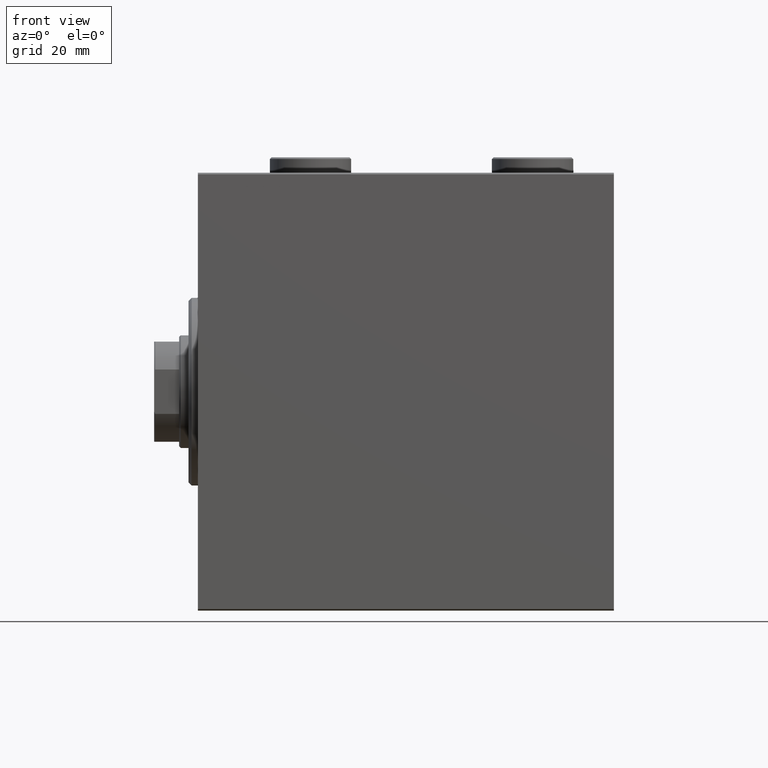
[diagram: clean part render]
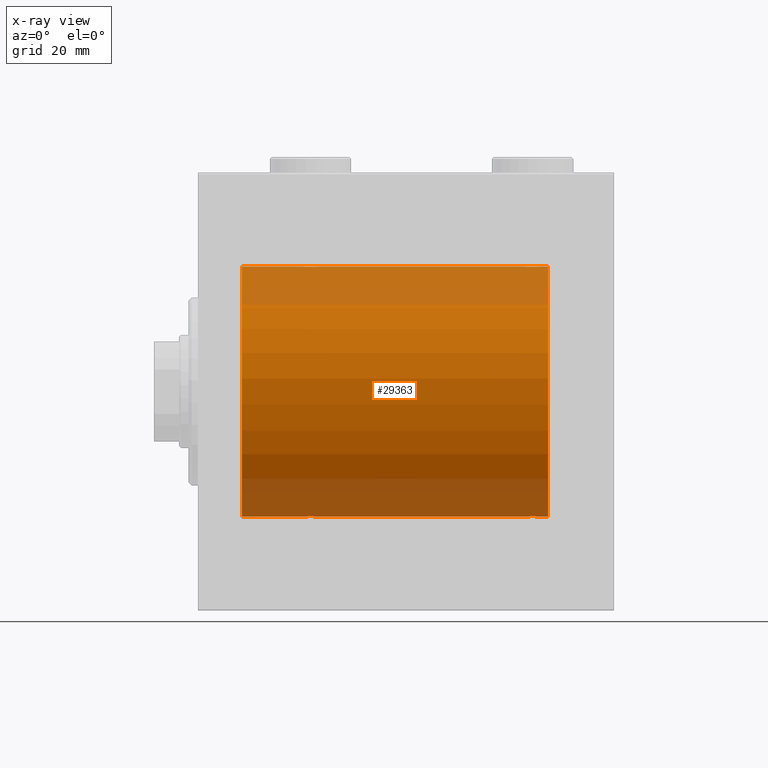
[diagram: x-ray — body ghosted, one internal face saturated and labeled with its STEP entity id]
A machine part, front view, then the same camera in x-ray: the body is ghosted and one INTERNAL B-rep face — a face not visible from any outside direction — is saturated and labeled: STEP entity #29363.
In plain terms, the highlighted cylindrical surface (partial cylindrical patch) has radius 40 mm, axis along (-1, -0, -0).
Its self-contained STEP definition (entity closure, byte-faithful):
#713 = VECTOR ( 'NONE', #26882, 1000.000000000000000 ) ;
#784 = CARTESIAN_POINT ( 'NONE',  ( 109.2582967032050192, -1.984537326394317569, 39.95097977400578060 ) ) ;
#1048 = CARTESIAN_POINT ( 'NONE',  ( 36.96489325853514174, -2.847401743820462183, 39.89859630624607689 ) ) ;
#1174 = B_SPLINE_CURVE_WITH_KNOTS ( 'NONE', 3,
 ( #42198, #28132, #45216, #10550, #35293, #7084, #6408, #34608, #3617, #2944, #17027, #13557, #41750, #10104, #6631, #11694, #15373, #39642, #43567, #11917, #1048, #29490, #32715, #33175, #11227, #36637, #21875, #21643, #22330, #36406, #39190, #43336 ),
 .UNSPECIFIED., .F., .F.,
 ( 4, 2, 2, 2, 2, 2, 2, 2, 2, 2, 2, 2, 2, 2, 2, 4 ),
 ( 0.009382660366305081018, 0.009968941372944116822, 0.01055522237958315263, 0.01114150338622219016, 0.01172778439286122597, 0.01231406539950026177, 0.01290034640613929931, 0.01348662741277833511, 0.01407290841941737092, 0.01465918942605640846, 0.01524547043269544253, 0.01583175143933448006, 0.01641803244597351413, 0.01700431345261255167, 0.01759059445925158921, 0.01876315647252966082 ),
 .UNSPECIFIED. ) ;
#1229 = DIRECTION ( 'NONE',  ( -1.000000000000000000, -0.000000000000000000, -0.000000000000000000 ) ) ;
#1297 = CARTESIAN_POINT ( 'NONE',  ( 109.6972134058088670, -1.327859336864152029, -39.97836169682016561 ) ) ;
#2141 = LINE ( 'NONE', #43738, #713 ) ;
#2628 = CARTESIAN_POINT ( 'NONE',  ( 38.69721340580881730, -1.327859336864144035, -39.97836169682019403 ) ) ;
#2926 = CARTESIAN_POINT ( 'NONE',  ( 32.99999999999999289, 4.605585004310627937E-15, -40.00000000000000000 ) ) ;
#2944 = CARTESIAN_POINT ( 'NONE',  ( 34.01538552187719233, -2.258217541132905293, 39.93644519243653690 ) ) ;
#3114 = LINE ( 'NONE', #28305, #3691 ) ;
#3347 = CARTESIAN_POINT ( 'NONE',  ( 104.1533472698686182, -0.9668189122103458821, 39.98872185468384544 ) ) ;
#3617 = CARTESIAN_POINT ( 'NONE',  ( 33.73902383005257377, -1.981471132463168638, 39.95113231465138881 ) ) ;
#3691 = VECTOR ( 'NONE', #10278, 1000.000000000000000 ) ;
#3907 = CARTESIAN_POINT ( 'NONE',  ( 13.99999999999999822, 4.898587196589413026E-15, -40.00000000000000000 ) ) ;
#4256 = CARTESIAN_POINT ( 'NONE',  ( 105.0153855218772065, -2.258217541132916395, 39.93644519243652979 ) ) ;
#4842 = LINE ( 'NONE', #39733, #34400 ) ;
#4993 = CARTESIAN_POINT ( 'NONE',  ( 105.4991153159596564, -2.604941918888321606, -39.91523680494982784 ) ) ;
#5218 = CARTESIAN_POINT ( 'NONE',  ( 107.7786952341574249, -2.903766417398243149, -39.89448096967571189 ) ) ;
#6257 = ORIENTED_EDGE ( 'NONE', *, *, #9260, .T. ) ;
#6408 = CARTESIAN_POINT ( 'NONE',  ( 33.39566400087915810, -1.502129635934004170, 39.97212271185186694 ) ) ;
#6536 = VECTOR ( 'NONE', #35838, 1000.000000000000000 ) ;
#6561 = AXIS2_PLACEMENT_3D ( 'NONE', #25563, #7997, #29487 ) ;
#6568 = CARTESIAN_POINT ( 'NONE',  ( 112.0000000000000000, 0.000000000000000000, 0.000000000000000000 ) ) ;
#6631 = CARTESIAN_POINT ( 'NONE',  ( 35.22130476584258219, -2.903766417398241373, 39.89448096967571189 ) ) ;
#6897 = AXIS2_PLACEMENT_3D ( 'NONE', #30178, #33865, #16287 ) ;
#6929 = CIRCLE ( 'NONE', #6897, 40.00000000000000000 ) ;
#7039 = CARTESIAN_POINT ( 'NONE',  ( 110.0000000000000142, -2.794909241144302331E-15, 40.00000000000000000 ) ) ;
#7084 = CARTESIAN_POINT ( 'NONE',  ( 33.30278659419118270, -1.327859336864149586, 39.97836169682017982 ) ) ;
#7263 = CARTESIAN_POINT ( 'NONE',  ( 104.6149239908464921, -1.830402106103529380, 39.95843610133493229 ) ) ;
#7449 = CARTESIAN_POINT ( 'NONE',  ( 33.07973825008353685, -0.7903958539027382546, -39.99381900068937767 ) ) ;
#7637 = CARTESIAN_POINT ( 'NONE',  ( 112.0000000000000000, 4.898587196589413026E-15, -40.00000000000000000 ) ) ;
#7718 = CARTESIAN_POINT ( 'NONE',  ( 104.7390238300526022, -1.981471132463181295, 39.95113231465138881 ) ) ;
#7997 = DIRECTION ( 'NONE',  ( -1.000000000000000000, 0.000000000000000000, 0.000000000000000000 ) ) ;
#8124 = CARTESIAN_POINT ( 'NONE',  ( 39.00000000000000000, 4.898587181755365697E-15, -40.00000000000000000 ) ) ;
#8467 = CARTESIAN_POINT ( 'NONE',  ( 106.0351067414648867, -2.847401743820467512, -39.89859630624608400 ) ) ;
#8530 = CARTESIAN_POINT ( 'NONE',  ( 13.99999999999999822, 0.000000000000000000, 40.00000000000000000 ) ) ;
#8828 = ORIENTED_EDGE ( 'NONE', *, *, #15786, .T. ) ;
#8912 = CARTESIAN_POINT ( 'NONE',  ( 110.0000000000000142, 4.898587181754971267E-15, -40.00000000000000000 ) ) ;
#9260 = EDGE_CURVE ( 'NONE', #44555, #44282, #43640, .T. ) ;
#9330 = CARTESIAN_POINT ( 'NONE',  ( 36.39522483453576029, -2.980272303779541332, -39.88883864243169342 ) ) ;
#9406 = ORIENTED_EDGE ( 'NONE', *, *, #25175, .F. ) ;
#9514 = EDGE_CURVE ( 'NONE', #38156, #33543, #27127, .T. ) ;
#9790 = CARTESIAN_POINT ( 'NONE',  ( 37.98461447812278635, -2.258217541132897743, -39.93644519243654400 ) ) ;
#10104 = CARTESIAN_POINT ( 'NONE',  ( 35.03061658105535514, -2.845855236045346626, 39.89870693240651889 ) ) ;
#10249 = CARTESIAN_POINT ( 'NONE',  ( 37.50443082913466242, -2.602909538701748016, -39.91537030566259148 ) ) ;
#10278 = DIRECTION ( 'NONE',  ( -1.000000000000000000, -0.000000000000000000, -0.000000000000000000 ) ) ;
#10332 = CARTESIAN_POINT ( 'NONE',  ( 104.0000000000000142, -4.251671907122233418E-15, -40.00000000000000000 ) ) ;
#10511 = CARTESIAN_POINT ( 'NONE',  ( 107.9648932585351417, -2.847401743820471065, 39.89859630624608400 ) ) ;
#10550 = CARTESIAN_POINT ( 'NONE',  ( 33.09574826348647036, -0.7773146824711031355, 39.99291453282343412 ) ) ;
#10967 = CARTESIAN_POINT ( 'NONE',  ( 109.6018872812849310, -1.506322235190793668, 39.97196309111975410 ) ) ;
#11164 = EDGE_LOOP ( 'NONE', ( #19012, #39549, #6257, #24225, #8828, #26353, #12311, #31114, #30481, #9406, #11865, #20107 ) ) ;
#11187 = CARTESIAN_POINT ( 'NONE',  ( 105.1695517717759998, -2.384933850258125876, 39.92898715513240404 ) ) ;
#11227 = CARTESIAN_POINT ( 'NONE',  ( 37.98136279514229585, -2.261082456166712440, 39.93628274425758207 ) ) ;
#11379 = CARTESIAN_POINT ( 'NONE',  ( 35.22544321173658943, -2.904869018727217700, -39.89440043036668726 ) ) ;
#11694 = CARTESIAN_POINT ( 'NONE',  ( 35.60477516546423260, -2.980272303779554655, 39.88883864243167920 ) ) ;
#11711 = CARTESIAN_POINT ( 'NONE',  ( 106.8043946892691736, -3.000157693440646867, -39.88732948994960736 ) ) ;
#11865 = ORIENTED_EDGE ( 'NONE', *, *, #9514, .T. ) ;
#11917 = CARTESIAN_POINT ( 'NONE',  ( 36.77455678826341057, -2.904869018727228358, 39.89440043036668015 ) ) ;
#12224 = VECTOR ( 'NONE', #22298, 1000.000000000000000 ) ;
#12311 = ORIENTED_EDGE ( 'NONE', *, *, #17837, .T. ) ;
#12393 = CARTESIAN_POINT ( 'NONE',  ( 107.3952248345357816, -2.980272303779556431, -39.88883864243169342 ) ) ;
#12734 = VERTEX_POINT ( 'NONE', #3907 ) ;
#12798 = CARTESIAN_POINT ( 'NONE',  ( 36.96938341894465907, -2.845855236045336856, -39.89870693240651178 ) ) ;
#13557 = CARTESIAN_POINT ( 'NONE',  ( 34.49556917086532337, -2.602909538701755565, 39.91537030566259148 ) ) ;
#13705 = CARTESIAN_POINT ( 'NONE',  ( 37.83044822822401443, -2.384933850258100119, -39.92898715513241115 ) ) ;
#13716 = VERTEX_POINT ( 'NONE', #8530 ) ;
#14614 = CARTESIAN_POINT ( 'NONE',  ( 34.49911531595966352, -2.604941918888306507, -39.91523680494982784 ) ) ;
#14656 = CARTESIAN_POINT ( 'NONE',  ( 104.0000000000000142, -1.483492375313373751E-23, 40.00000000000000000 ) ) ;
#14844 = CARTESIAN_POINT ( 'NONE',  ( 34.67146355253704826, -2.696981015661917613, -39.90904630908468675 ) ) ;
#14878 = CARTESIAN_POINT ( 'NONE',  ( 109.6953700770843767, -1.331594428131652963, 39.97823692017208685 ) ) ;
#15162 = CARTESIAN_POINT ( 'NONE',  ( 110.0000000000000000, -0.1957844162750523587, -40.00000000000000711 ) ) ;
#15373 = CARTESIAN_POINT ( 'NONE',  ( 35.79958713980801832, -2.999840380514748883, 39.88735335562824247 ) ) ;
#15786 = EDGE_CURVE ( 'NONE', #39588, #23220, #26733, .T. ) ;
#15844 = CARTESIAN_POINT ( 'NONE',  ( 106.6089030749067064, -2.980812880639904794, -39.88879797994688658 ) ) ;
#16071 = CARTESIAN_POINT ( 'NONE',  ( 107.9693834189446733, -2.845855236045348402, -39.89870693240651889 ) ) ;
#16287 = DIRECTION ( 'NONE',  ( 0.000000000000000000, 0.000000000000000000, 1.000000000000000000 ) ) ;
#16478 = CARTESIAN_POINT ( 'NONE',  ( 35.80439468926913804, -3.000157693440631324, -39.88732948994960026 ) ) ;
#16982 = EDGE_CURVE ( 'NONE', #44282, #39588, #39292, .T. ) ;
#17027 = CARTESIAN_POINT ( 'NONE',  ( 34.16955177177597847, -2.384933850258108556, 39.92898715513240404 ) ) ;
#17178 = DIRECTION ( 'NONE',  ( 0.000000000000000000, 0.000000000000000000, 1.000000000000000000 ) ) ;
#17425 = CARTESIAN_POINT ( 'NONE',  ( 104.0000000000000142, -1.483492375313373751E-23, 40.00000000000000000 ) ) ;
#17837 = EDGE_CURVE ( 'NONE', #12734, #13716, #35347, .T. ) ;
#17853 = CARTESIAN_POINT ( 'NONE',  ( 35.03510674146484405, -2.847401743820449305, -39.89859630624607689 ) ) ;
#17889 = CARTESIAN_POINT ( 'NONE',  ( 106.2213047658425893, -2.903766417398247590, 39.89448096967571189 ) ) ;
#18353 = CARTESIAN_POINT ( 'NONE',  ( 108.3285364474629660, -2.696981015661940262, 39.90904630908467254 ) ) ;
#18484 = DIRECTION ( 'NONE',  ( -1.000000000000000000, -0.000000000000000000, -0.000000000000000000 ) ) ;
#18790 = LINE ( 'NONE', #32891, #37858 ) ;
#19012 = ORIENTED_EDGE ( 'NONE', *, *, #36321, .F. ) ;
#19551 = CARTESIAN_POINT ( 'NONE',  ( 104.0000000000000284, -0.3964922677423729502, -40.00000000000000000 ) ) ;
#20107 = ORIENTED_EDGE ( 'NONE', *, *, #30285, .F. ) ;
#20313 = VERTEX_POINT ( 'NONE', #35868 ) ;
#20878 = CARTESIAN_POINT ( 'NONE',  ( 39.00000000000000000, 4.898587181755365697E-15, -40.00000000000000000 ) ) ;
#20920 = CARTESIAN_POINT ( 'NONE',  ( 104.3956640008791794, -1.502129635934016383, 39.97212271185185983 ) ) ;
#21643 = CARTESIAN_POINT ( 'NONE',  ( 38.60188728128492386, -1.506322235190783232, 39.97196309111974699 ) ) ;
#21793 = CARTESIAN_POINT ( 'NONE',  ( 32.99999999999998579, -0.3964922677423637909, -39.99999999999998579 ) ) ;
#21833 = CARTESIAN_POINT ( 'NONE',  ( 107.1956053107308406, -3.000157693440651752, 39.88732948994960026 ) ) ;
#21875 = CARTESIAN_POINT ( 'NONE',  ( 38.38251680911464803, -1.833695109615719021, 39.95828327492363741 ) ) ;
#22026 = CARTESIAN_POINT ( 'NONE',  ( 34.01863720485770415, -2.261082456166700005, -39.93628274425758917 ) ) ;
#22298 = DIRECTION ( 'NONE',  ( -1.000000000000000000, -0.000000000000000000, -0.000000000000000000 ) ) ;
#22330 = CARTESIAN_POINT ( 'NONE',  ( 38.69537007708435539, -1.331594428131646080, 39.97823692017209396 ) ) ;
#22575 = CARTESIAN_POINT ( 'NONE',  ( 105.6714635525370198, -2.696981015661934933, -39.90904630908467254 ) ) ;
#22804 = CARTESIAN_POINT ( 'NONE',  ( 109.9810187711092908, -0.3904143323715949521, -39.99856256910221219 ) ) ;
#23028 = CARTESIAN_POINT ( 'NONE',  ( 109.9042517365135438, -0.7773146824711011371, -39.99291453282344122 ) ) ;
#23220 = VERTEX_POINT ( 'NONE', #2926 ) ;
#23255 = CARTESIAN_POINT ( 'NONE',  ( 104.0797382500835369, -0.7903958539027451380, -39.99381900068937057 ) ) ;
#23452 = CARTESIAN_POINT ( 'NONE',  ( 36.20041286019198168, -2.999840380514735116, -39.88735335562824957 ) ) ;
#24225 = ORIENTED_EDGE ( 'NONE', *, *, #16982, .T. ) ;
#24812 = CARTESIAN_POINT ( 'NONE',  ( 32.99999999999999289, 4.605585004310627937E-15, -40.00000000000000000 ) ) ;
#24855 = CARTESIAN_POINT ( 'NONE',  ( 105.6677573113413615, -2.695129988695747603, 39.90917164320281785 ) ) ;
#25072 = CARTESIAN_POINT ( 'NONE',  ( 110.0000000000000000, -0.3964922677423690645, 40.00000000000000000 ) ) ;
#25175 = EDGE_CURVE ( 'NONE', #38156, #20313, #3114, .T. ) ;
#25313 = VERTEX_POINT ( 'NONE', #43285 ) ;
#25370 = EDGE_CURVE ( 'NONE', #25313, #13716, #2141, .T. ) ;
#25563 = CARTESIAN_POINT ( 'NONE',  ( 13.99999999999999822, 0.000000000000000000, 0.000000000000000000 ) ) ;
#25818 = CARTESIAN_POINT ( 'NONE',  ( 104.3981127187150690, -1.506322235190790559, -39.97196309111975410 ) ) ;
#26040 = CARTESIAN_POINT ( 'NONE',  ( 109.8466527301314102, -0.9668189122103407751, -39.98872185468385254 ) ) ;
#26353 = ORIENTED_EDGE ( 'NONE', *, *, #41321, .T. ) ;
#26496 = CARTESIAN_POINT ( 'NONE',  ( 104.7417032967950377, -1.984537326394312906, -39.95097977400579481 ) ) ;
#26636 = CARTESIAN_POINT ( 'NONE',  ( 112.0000000000000000, 0.000000000000000000, 40.00000000000000000 ) ) ;
#26733 = B_SPLINE_CURVE_WITH_KNOTS ( 'NONE', 3,
 ( #20878, #31279, #44910, #34291, #38431, #2628, #27368, #45358, #41442, #9790, #13705, #10249, #44446, #12798, #40983, #9330, #23452, #16478, #39562, #11379, #17853, #14844, #14614, #38650, #22026, #28725, #43026, #31735, #31508, #7449, #21793, #24812 ),
 .UNSPECIFIED., .F., .F.,
 ( 4, 2, 2, 2, 2, 2, 2, 2, 2, 2, 2, 2, 2, 2, 2, 4 ),
 ( 0.009382660366305110508, 0.009968941372944146312, 0.01055522237958318212, 0.01114150338622221792, 0.01172778439286125372, 0.01231406539950028953, 0.01290034640613932533, 0.01348662741277836113, 0.01407290841941739694, 0.01465918942605643274, 0.01524547043269546855, 0.01583175143933450435, 0.01641803244597354189, 0.01700431345261257596, 0.01759059445925161003, 0.01876315647252968163 ),
 .UNSPECIFIED. ) ;
#26882 = DIRECTION ( 'NONE',  ( -1.000000000000000000, -0.000000000000000000, -0.000000000000000000 ) ) ;
#27127 = B_SPLINE_CURVE_WITH_KNOTS ( 'NONE', 3,
 ( #14656, #45630, #28764, #42833, #3347, #28993, #20920, #7263, #7718, #4256, #11187, #31998, #24855, #28543, #17889, #28090, #35470, #21833, #42159, #35920, #10511, #18353, #42616, #32455, #42382, #784, #38694, #10967, #14878, #38924, #25072, #7039 ),
 .UNSPECIFIED., .F., .F.,
 ( 4, 2, 2, 2, 2, 2, 2, 2, 2, 2, 2, 2, 2, 2, 2, 4 ),
 ( 0.009382660366305098365, 0.009968941372944135904, 0.01055522237958317344, 0.01114150338622220925, 0.01172778439286124678, 0.01231406539950028432, 0.01290034640613932013, 0.01348662741277835767, 0.01407290841941739520, 0.01465918942605643274, 0.01524547043269547028, 0.01583175143933450435, 0.01641803244597354189, 0.01700431345261257943, 0.01759059445925161697, 0.01876315647252969204 ),
 .UNSPECIFIED. ) ;
#27368 = CARTESIAN_POINT ( 'NONE',  ( 38.60433599912083480, -1.502129635934000396, -39.97212271185185273 ) ) ;
#28090 = CARTESIAN_POINT ( 'NONE',  ( 106.6047751654642468, -2.980272303779561316, 39.88883864243167920 ) ) ;
#28132 = CARTESIAN_POINT ( 'NONE',  ( 32.99999999999997158, -0.1957844162750553285, 40.00000000000000000 ) ) ;
#28174 = VERTEX_POINT ( 'NONE', #26636 ) ;
#28305 = CARTESIAN_POINT ( 'NONE',  ( 112.0000000000000000, 0.000000000000000000, 40.00000000000000000 ) ) ;
#28543 = CARTESIAN_POINT ( 'NONE',  ( 106.0306165810553409, -2.845855236045354619, 39.89870693240651178 ) ) ;
#28725 = CARTESIAN_POINT ( 'NONE',  ( 33.74170329679496660, -1.984537326394300250, -39.95097977400577349 ) ) ;
#28764 = CARTESIAN_POINT ( 'NONE',  ( 104.0189812288907376, -0.3904143323716007807, 39.99856256910221219 ) ) ;
#28993 = CARTESIAN_POINT ( 'NONE',  ( 104.3027865941912182, -1.327859336864157358, 39.97836169682016561 ) ) ;
#29278 = CARTESIAN_POINT ( 'NONE',  ( 109.6043359991208206, -1.502129635934005503, -39.97212271185185983 ) ) ;
#29363 = ADVANCED_FACE ( 'NONE', ( #44694 ), #37766, .F. ) ;
#29487 = DIRECTION ( 'NONE',  ( 0.000000000000000000, 0.000000000000000000, 1.000000000000000000 ) ) ;
#29490 = CARTESIAN_POINT ( 'NONE',  ( 37.32853644746295885, -2.696981015661930936, 39.90904630908465833 ) ) ;
#29508 = CARTESIAN_POINT ( 'NONE',  ( 109.2609761699474262, -1.981471132463164864, -39.95113231465139592 ) ) ;
#29962 = CARTESIAN_POINT ( 'NONE',  ( 105.0186372048576970, -2.261082456166713328, -39.93628274425758207 ) ) ;
#30178 = CARTESIAN_POINT ( 'NONE',  ( 112.0000000000000000, 0.000000000000000000, 0.000000000000000000 ) ) ;
#30285 = EDGE_CURVE ( 'NONE', #28174, #33543, #18790, .T. ) ;
#30481 = ORIENTED_EDGE ( 'NONE', *, *, #44334, .T. ) ;
#31064 = VERTEX_POINT ( 'NONE', #43521 ) ;
#31114 = ORIENTED_EDGE ( 'NONE', *, *, #25370, .F. ) ;
#31279 = CARTESIAN_POINT ( 'NONE',  ( 38.99999999999999289, -0.1957844162750510819, -40.00000000000000711 ) ) ;
#31508 = CARTESIAN_POINT ( 'NONE',  ( 33.30462992291564461, -1.331594428131640528, -39.97823692017208685 ) ) ;
#31735 = CARTESIAN_POINT ( 'NONE',  ( 33.39811271871507614, -1.506322235190781456, -39.97196309111974699 ) ) ;
#31998 = CARTESIAN_POINT ( 'NONE',  ( 105.4955691708653518, -2.602909538701771996, 39.91537030566259148 ) ) ;
#32455 = CARTESIAN_POINT ( 'NONE',  ( 108.8269018463241053, -2.387636253591832514, 39.92882473497732576 ) ) ;
#32715 = CARTESIAN_POINT ( 'NONE',  ( 37.50088468404035069, -2.604941918888315833, 39.91523680494983495 ) ) ;
#32891 = CARTESIAN_POINT ( 'NONE',  ( 112.0000000000000000, 0.000000000000000000, 40.00000000000000000 ) ) ;
#33175 = CARTESIAN_POINT ( 'NONE',  ( 37.82690184632411956, -2.387636253591820523, 39.92882473497731866 ) ) ;
#33193 = CARTESIAN_POINT ( 'NONE',  ( 106.2254432117366036, -2.904869018727228802, -39.89440043036668726 ) ) ;
#33412 = CARTESIAN_POINT ( 'NONE',  ( 105.1730981536758804, -2.387636253591827185, -39.92882473497732576 ) ) ;
#33543 = VERTEX_POINT ( 'NONE', #45064 ) ;
#33646 = CARTESIAN_POINT ( 'NONE',  ( 104.0000000000000142, -4.251671907122233418E-15, -40.00000000000000000 ) ) ;
#33865 = DIRECTION ( 'NONE',  ( -1.000000000000000000, 0.000000000000000000, 0.000000000000000000 ) ) ;
#34291 = CARTESIAN_POINT ( 'NONE',  ( 38.90425173651351543, -0.7773146824710984726, -39.99291453282344122 ) ) ;
#34308 = DIRECTION ( 'NONE',  ( -1.000000000000000000, -0.000000000000000000, -0.000000000000000000 ) ) ;
#34400 = VECTOR ( 'NONE', #18484, 1000.000000000000000 ) ;
#34608 = CARTESIAN_POINT ( 'NONE',  ( 33.61492399084646365, -1.830402106103518056, 39.95843610133494650 ) ) ;
#34913 = AXIS2_PLACEMENT_3D ( 'NONE', #6568, #34308, #17178 ) ;
#35293 = CARTESIAN_POINT ( 'NONE',  ( 33.15334726986859692, -0.9668189122103382216, 39.98872185468385254 ) ) ;
#35347 = CIRCLE ( 'NONE', #6561, 40.00000000000000000 ) ;
#35470 = CARTESIAN_POINT ( 'NONE',  ( 106.7995871398080254, -2.999840380514755100, 39.88735335562824957 ) ) ;
#35838 = DIRECTION ( 'NONE',  ( -1.000000000000000000, -0.000000000000000000, -0.000000000000000000 ) ) ;
#35868 = CARTESIAN_POINT ( 'NONE',  ( 39.00000000000000000, -1.886242593979369380E-15, 40.00000000000000000 ) ) ;
#35920 = CARTESIAN_POINT ( 'NONE',  ( 107.7745567882634248, -2.904869018727233687, 39.89440043036668726 ) ) ;
#36321 = EDGE_CURVE ( 'NONE', #31064, #28174, #6929, .T. ) ;
#36406 = CARTESIAN_POINT ( 'NONE',  ( 38.92026174991646315, -0.7903958539027399199, 39.99381900068935636 ) ) ;
#36607 = CARTESIAN_POINT ( 'NONE',  ( 112.0000000000000000, 4.898587196589413026E-15, -40.00000000000000000 ) ) ;
#36637 = CARTESIAN_POINT ( 'NONE',  ( 38.25829670320501918, -1.984537326394312462, 39.95097977400578060 ) ) ;
#36834 = LINE ( 'NONE', #36607, #12224 ) ;
#36881 = CARTESIAN_POINT ( 'NONE',  ( 108.9846144781227935, -2.258217541132901296, -39.93644519243653690 ) ) ;
#37106 = CARTESIAN_POINT ( 'NONE',  ( 104.6174831908853804, -1.833695109615725238, -39.95828327492363741 ) ) ;
#37766 = CYLINDRICAL_SURFACE ( 'NONE', #34913, 40.00000000000000000 ) ;
#37858 = VECTOR ( 'NONE', #1229, 1000.000000000000000 ) ;
#38156 = VERTEX_POINT ( 'NONE', #17425 ) ;
#38431 = CARTESIAN_POINT ( 'NONE',  ( 38.84665273013138176, -0.9668189122103333366, -39.98872185468385254 ) ) ;
#38650 = CARTESIAN_POINT ( 'NONE',  ( 34.17309815367588754, -2.387636253591812974, -39.92882473497732576 ) ) ;
#38694 = CARTESIAN_POINT ( 'NONE',  ( 109.3825168091146622, -1.833695109615728125, 39.95828327492363741 ) ) ;
#38924 = CARTESIAN_POINT ( 'NONE',  ( 109.9202617499164916, -0.7903958539027468033, 39.99381900068937057 ) ) ;
#39190 = CARTESIAN_POINT ( 'NONE',  ( 38.99999999999999289, -0.3964922677423670661, 40.00000000000000711 ) ) ;
#39292 = LINE ( 'NONE', #7637, #6536 ) ;
#39549 = ORIENTED_EDGE ( 'NONE', *, *, #39974, .T. ) ;
#39562 = CARTESIAN_POINT ( 'NONE',  ( 35.60890307490667794, -2.980812880639892359, -39.88879797994688658 ) ) ;
#39588 = VERTEX_POINT ( 'NONE', #8124 ) ;
#39642 = CARTESIAN_POINT ( 'NONE',  ( 36.19560531073086196, -3.000157693440645090, 39.88732948994960026 ) ) ;
#39733 = CARTESIAN_POINT ( 'NONE',  ( 112.0000000000000000, 4.898587196589413026E-15, -40.00000000000000000 ) ) ;
#39885 = CARTESIAN_POINT ( 'NONE',  ( 104.3046299229156233, -1.331594428131650965, -39.97823692017208685 ) ) ;
#39974 = EDGE_CURVE ( 'NONE', #31064, #44555, #36834, .T. ) ;
#40340 = CARTESIAN_POINT ( 'NONE',  ( 109.3850760091535363, -1.830402106103518944, -39.95843610133493939 ) ) ;
#40983 = CARTESIAN_POINT ( 'NONE',  ( 36.77869523415743913, -2.903766417398228938, -39.89448096967571900 ) ) ;
#41321 = EDGE_CURVE ( 'NONE', #23220, #12734, #4842, .T. ) ;
#41442 = CARTESIAN_POINT ( 'NONE',  ( 38.26097616994740491, -1.981471132463162643, -39.95113231465139592 ) ) ;
#41750 = CARTESIAN_POINT ( 'NONE',  ( 34.66775731134134020, -2.695129988695739609, 39.90917164320281074 ) ) ;
#42159 = CARTESIAN_POINT ( 'NONE',  ( 107.3910969250933505, -2.980812880639910123, 39.88879797994688658 ) ) ;
#42198 = CARTESIAN_POINT ( 'NONE',  ( 32.99999999999999289, -1.483452932268112700E-23, 40.00000000000000000 ) ) ;
#42382 = CARTESIAN_POINT ( 'NONE',  ( 108.9813627951423456, -2.261082456166716881, 39.93628274425758207 ) ) ;
#42598 = CARTESIAN_POINT ( 'NONE',  ( 110.0000000000000142, 4.898587181754971267E-15, -40.00000000000000000 ) ) ;
#42616 = CARTESIAN_POINT ( 'NONE',  ( 108.5008846840403436, -2.604941918888326935, 39.91523680494982784 ) ) ;
#42833 = CARTESIAN_POINT ( 'NONE',  ( 104.0957482634864846, -0.7773146824711071323, 39.99291453282344833 ) ) ;
#43026 = CARTESIAN_POINT ( 'NONE',  ( 33.61748319088535908, -1.833695109615714802, -39.95828327492363741 ) ) ;
#43285 = CARTESIAN_POINT ( 'NONE',  ( 32.99999999999999289, -1.483452932268112700E-23, 40.00000000000000000 ) ) ;
#43336 = CARTESIAN_POINT ( 'NONE',  ( 39.00000000000000000, -1.886242593979369380E-15, 40.00000000000000000 ) ) ;
#43354 = CARTESIAN_POINT ( 'NONE',  ( 107.2004128601920172, -2.999840380514750660, -39.88735335562826378 ) ) ;
#43521 = CARTESIAN_POINT ( 'NONE',  ( 112.0000000000000000, 4.898587196589413026E-15, -40.00000000000000000 ) ) ;
#43567 = CARTESIAN_POINT ( 'NONE',  ( 36.39109692509333627, -2.980812880639903906, 39.88879797994688658 ) ) ;
#43584 = CARTESIAN_POINT ( 'NONE',  ( 108.5044308291346908, -2.602909538701760006, -39.91537030566259148 ) ) ;
#43640 = B_SPLINE_CURVE_WITH_KNOTS ( 'NONE', 3,
 ( #8912, #15162, #22804, #23028, #26040, #1297, #29278, #40340, #29508, #36881, #43806, #43584, #44039, #16071, #5218, #12393, #43354, #11711, #15844, #33193, #8467, #22575, #4993, #33412, #29962, #26496, #37106, #25818, #39885, #23255, #19551, #33646 ),
 .UNSPECIFIED., .F., .F.,
 ( 4, 2, 2, 2, 2, 2, 2, 2, 2, 2, 2, 2, 2, 2, 2, 4 ),
 ( 0.009382660366305122651, 0.009968941372944160190, 0.01055522237958319946, 0.01114150338622223700, 0.01172778439286127454, 0.01231406539950031208, 0.01290034640613934962, 0.01348662741277838542, 0.01407290841941742296, 0.01465918942605646050, 0.01524547043269549804, 0.01583175143933453557, 0.01641803244597356964, 0.01700431345261260718, 0.01759059445925164472, 0.01876315647252971980 ),
 .UNSPECIFIED. ) ;
#43738 = CARTESIAN_POINT ( 'NONE',  ( 112.0000000000000000, 0.000000000000000000, 40.00000000000000000 ) ) ;
#43806 = CARTESIAN_POINT ( 'NONE',  ( 108.8304482282240144, -2.384933850258110777, -39.92898715513239694 ) ) ;
#44039 = CARTESIAN_POINT ( 'NONE',  ( 108.3322426886586669, -2.695129988695742718, -39.90917164320281074 ) ) ;
#44282 = VERTEX_POINT ( 'NONE', #10332 ) ;
#44334 = EDGE_CURVE ( 'NONE', #25313, #20313, #1174, .T. ) ;
#44446 = CARTESIAN_POINT ( 'NONE',  ( 37.33224268865864559, -2.695129988695729839, -39.90917164320280364 ) ) ;
#44555 = VERTEX_POINT ( 'NONE', #42598 ) ;
#44694 = FACE_OUTER_BOUND ( 'NONE', #11164, .T. ) ;
#44910 = CARTESIAN_POINT ( 'NONE',  ( 38.98101877110926239, -0.3904143323715931757, -39.99856256910221219 ) ) ;
#45064 = CARTESIAN_POINT ( 'NONE',  ( 110.0000000000000142, -2.794909241144302331E-15, 40.00000000000000000 ) ) ;
#45216 = CARTESIAN_POINT ( 'NONE',  ( 33.01898122889073051, -0.3904143323715975056, 39.99856256910221219 ) ) ;
#45358 = CARTESIAN_POINT ( 'NONE',  ( 38.38507600915353635, -1.830402106103512505, -39.95843610133493229 ) ) ;
#45630 = CARTESIAN_POINT ( 'NONE',  ( 104.0000000000000142, -0.1957844162750575212, 39.99999999999999289 ) ) ;